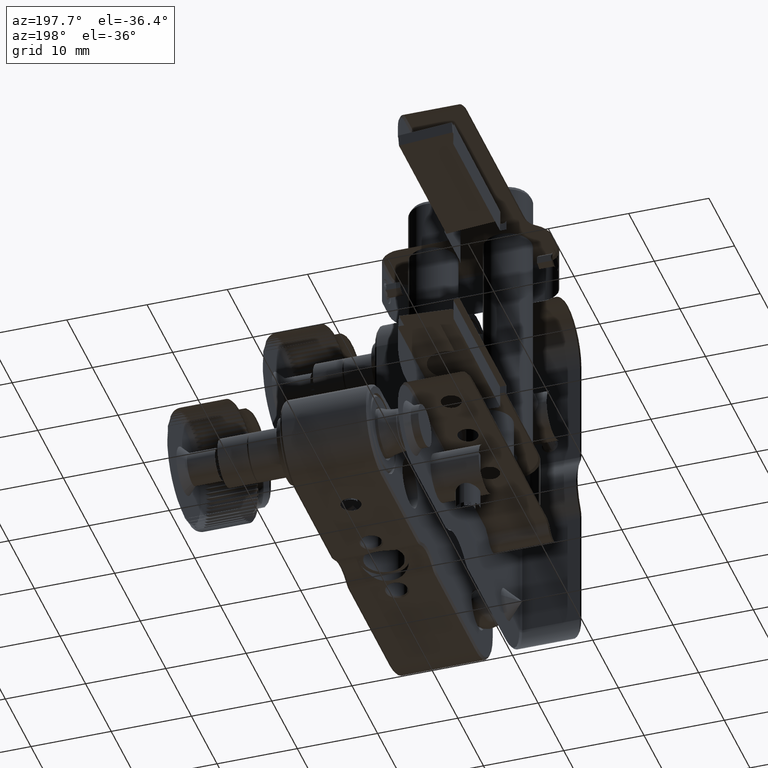
[diagram: clean part render]
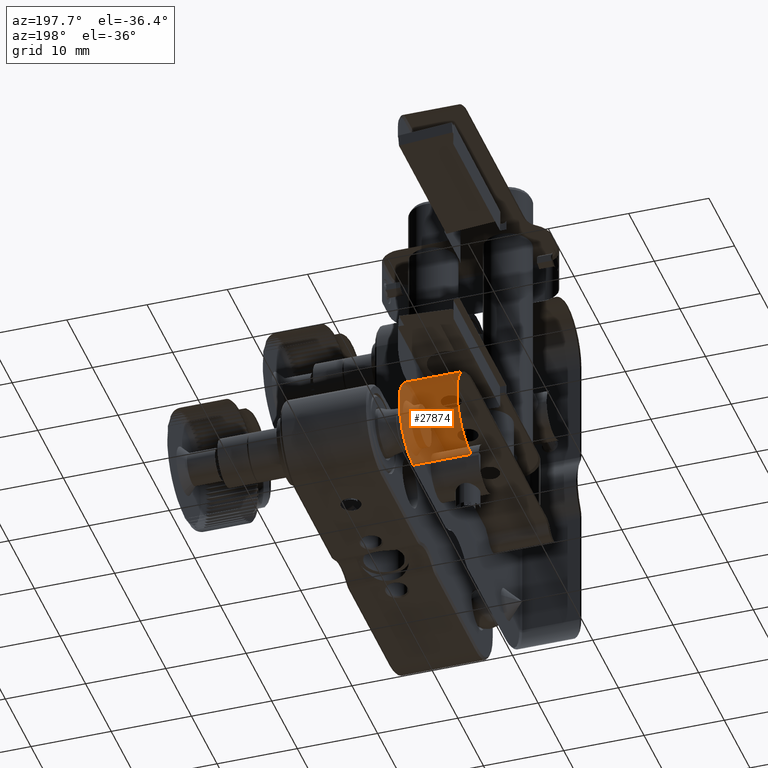
[diagram: same view with one face highlighted and labeled with its STEP entity id]
A machine part, auxiliary view. The second image highlights one B-rep face of the part: STEP entity #27874.
In plain terms, the highlighted cylindrical surface (partial cylindrical patch) has radius 5.5 mm, axis along (-1, -0, -0).
Its self-contained STEP definition (entity closure, byte-faithful):
#893 = AXIS2_PLACEMENT_3D ( 'NONE', #24147, #1928, #11338 ) ;
#1179 = EDGE_CURVE ( 'NONE', #25825, #7238, #28352, .T. ) ;
#1332 = VECTOR ( 'NONE', #1530, 1000.000000000000000 ) ;
#1530 = DIRECTION ( 'NONE',  ( -1.000000000000000000, -2.636779683484746290E-16, -5.551115123125776539E-17 ) ) ;
#1928 = DIRECTION ( 'NONE',  ( -1.000000000000000000, -2.636779683484746290E-16, -5.551115123125776539E-17 ) ) ;
#2842 = ORIENTED_EDGE ( 'NONE', *, *, #31261, .F. ) ;
#3191 = DIRECTION ( 'NONE',  ( -1.000000000000000000, -2.636779683484746290E-16, -5.551115123125776539E-17 ) ) ;
#3507 = FACE_OUTER_BOUND ( 'NONE', #15520, .T. ) ;
#4499 = AXIS2_PLACEMENT_3D ( 'NONE', #29834, #15032, #25414 ) ;
#5752 = CARTESIAN_POINT ( 'NONE',  ( -104.1387023768636482, 5.563724036656156002, 36.00000000000001421 ) ) ;
#6091 = CYLINDRICAL_SURFACE ( 'NONE', #19433, 5.500000000000001776 ) ;
#7238 = VERTEX_POINT ( 'NONE', #25885 ) ;
#8982 = CARTESIAN_POINT ( 'NONE',  ( -26.44174326823963384, 5.563724036656151561, 25.00000000000001066 ) ) ;
#10122 = ORIENTED_EDGE ( 'NONE', *, *, #15089, .F. ) ;
#11129 = DIRECTION ( 'NONE',  ( 0.000000000000000000, -1.000000000000000000, 0.000000000000000000 ) ) ;
#11338 = DIRECTION ( 'NONE',  ( 0.000000000000000000, -1.000000000000000000, 0.000000000000000000 ) ) ;
#12804 = VERTEX_POINT ( 'NONE', #22665 ) ;
#12999 = CARTESIAN_POINT ( 'NONE',  ( -26.19174326823321763, 5.563724036656153338, 36.00000000001929124 ) ) ;
#14882 = CIRCLE ( 'NONE', #893, 5.500000000000001776 ) ;
#15032 = DIRECTION ( 'NONE',  ( -1.000000000000000000, -2.636779683484746290E-16, -5.551115123125776539E-17 ) ) ;
#15089 = EDGE_CURVE ( 'NONE', #17685, #12804, #14882, .T. ) ;
#15520 = EDGE_LOOP ( 'NONE', ( #20597, #30808, #2842, #10122 ) ) ;
#15644 = DIRECTION ( 'NONE',  ( -1.000000000000000000, -2.099326371447510857E-32, -5.551115123125783935E-17 ) ) ;
#15804 = LINE ( 'NONE', #5752, #18397 ) ;
#17685 = VERTEX_POINT ( 'NONE', #24191 ) ;
#18397 = VECTOR ( 'NONE', #15644, 1000.000000000000000 ) ;
#19433 = AXIS2_PLACEMENT_3D ( 'NONE', #30803, #3191, #11129 ) ;
#20597 = ORIENTED_EDGE ( 'NONE', *, *, #30051, .T. ) ;
#21326 = LINE ( 'NONE', #8982, #1332 ) ;
#22665 = CARTESIAN_POINT ( 'NONE',  ( -18.99174326825872683, 5.563724036656152450, 24.99999999998011191 ) ) ;
#24147 = CARTESIAN_POINT ( 'NONE',  ( -18.99174326823963810, 5.563724036656153338, 30.50000000000001421 ) ) ;
#24191 = CARTESIAN_POINT ( 'NONE',  ( -18.99174326823963455, 5.563724036656156002, 36.00000000000002132 ) ) ;
#25414 = DIRECTION ( 'NONE',  ( 0.000000000000000000, -1.000000000000000000, 0.000000000000000000 ) ) ;
#25825 = VERTEX_POINT ( 'NONE', #12999 ) ;
#25885 = CARTESIAN_POINT ( 'NONE',  ( -26.19174326830563260, 5.563724036656153338, 25.00000000000347455 ) ) ;
#27874 = ADVANCED_FACE ( 'NONE', ( #3507 ), #6091, .F. ) ;
#28352 = CIRCLE ( 'NONE', #4499, 5.500000000077091222 ) ;
#29834 = CARTESIAN_POINT ( 'NONE',  ( -26.19174326821394061, 5.563724036656151561, 30.50000000000001421 ) ) ;
#30051 = EDGE_CURVE ( 'NONE', #17685, #25825, #15804, .T. ) ;
#30803 = CARTESIAN_POINT ( 'NONE',  ( -26.44174326823963384, 5.563724036656151561, 30.50000000000001421 ) ) ;
#30808 = ORIENTED_EDGE ( 'NONE', *, *, #1179, .T. ) ;
#31261 = EDGE_CURVE ( 'NONE', #12804, #7238, #21326, .T. ) ;